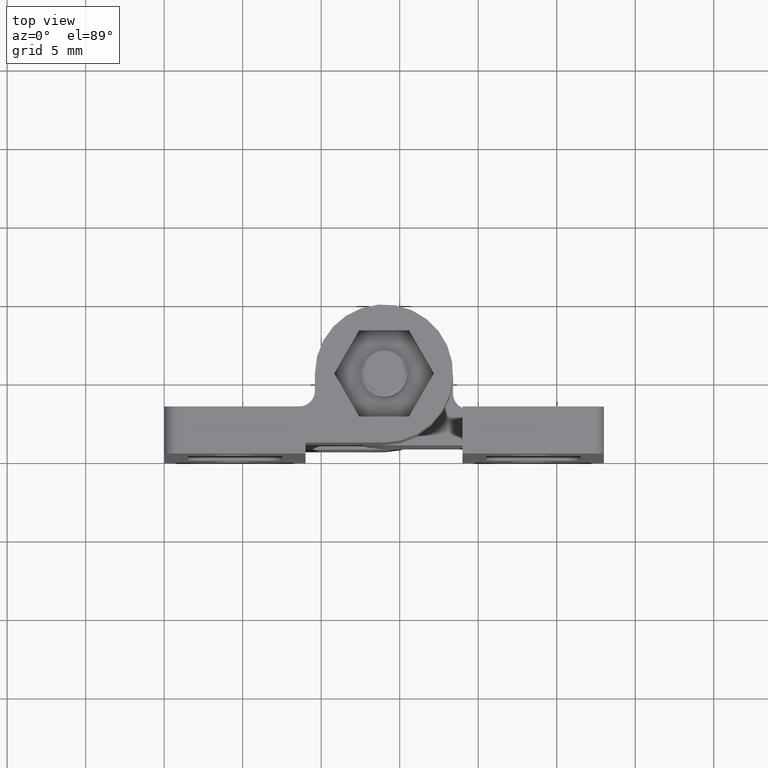
[diagram: clean part render]
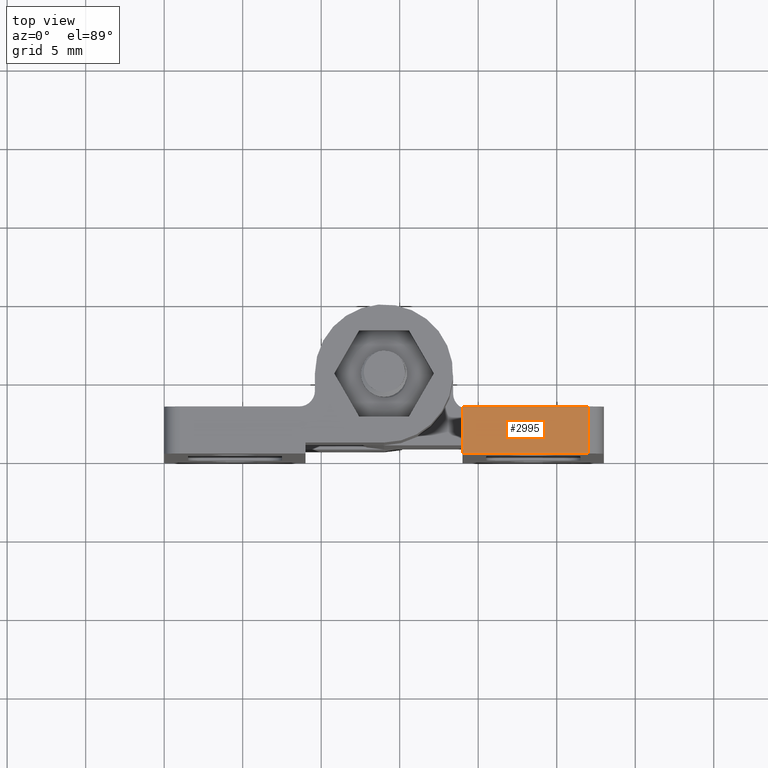
[diagram: same view with one face highlighted and labeled with its STEP entity id]
A machine part, top view. The second image highlights one B-rep face of the part: STEP entity #2995.
In plain terms, the highlighted planar face has unit normal (0, 0, 1).
Its self-contained STEP definition (entity closure, byte-faithful):
#393=PLANE('',#3155);
#491=FACE_OUTER_BOUND('',#627,.T.);
#627=EDGE_LOOP('',(#2744,#2745,#2746,#2747));
#782=LINE('',#33434,#938);
#784=LINE('',#33440,#940);
#785=LINE('',#33442,#941);
#786=LINE('',#33443,#942);
#938=VECTOR('',#3577,3.);
#940=VECTOR('',#3583,8.);
#941=VECTOR('',#3584,3.);
#942=VECTOR('',#3585,8.);
#1403=VERTEX_POINT('',#33431);
#1404=VERTEX_POINT('',#33433);
#1406=VERTEX_POINT('',#33439);
#1407=VERTEX_POINT('',#33441);
#1859=EDGE_CURVE('',#1403,#1404,#782,.T.);
#1862=EDGE_CURVE('',#1403,#1406,#784,.T.);
#1863=EDGE_CURVE('',#1406,#1407,#785,.T.);
#1864=EDGE_CURVE('',#1407,#1404,#786,.T.);
#2744=ORIENTED_EDGE('',*,*,#1859,.F.);
#2745=ORIENTED_EDGE('',*,*,#1862,.T.);
#2746=ORIENTED_EDGE('',*,*,#1863,.T.);
#2747=ORIENTED_EDGE('',*,*,#1864,.T.);
#2995=ADVANCED_FACE('',(#491),#393,.T.);
#3155=AXIS2_PLACEMENT_3D('',#33438,#3581,#3582);
#3577=DIRECTION('',(-6.12323399573677E-17,0.,-1.));
#3581=DIRECTION('center_axis',(0.,1.,0.));
#3582=DIRECTION('ref_axis',(1.,0.,0.));
#3583=DIRECTION('',(1.,0.,0.));
#3584=DIRECTION('',(0.,0.,-1.));
#3585=DIRECTION('',(-1.,0.,1.71193772834421E-33));
#33431=CARTESIAN_POINT('',(31.9262510638286,18.,3.));
#33433=CARTESIAN_POINT('',(31.9262510638286,18.,-1.71193772834421E-33));
#33434=CARTESIAN_POINT('',(31.9262510638286,18.,2.375));
#33438=CARTESIAN_POINT('Origin',(40.1262510638286,18.,4.75));
#33439=CARTESIAN_POINT('',(39.9262510638286,18.,3.));
#33440=CARTESIAN_POINT('',(40.0262510638287,18.,3.));
#33441=CARTESIAN_POINT('',(39.9262510638286,18.,0.));
#33442=CARTESIAN_POINT('',(39.9262510638287,18.,2.375));
#33443=CARTESIAN_POINT('',(30.9262510638286,18.,0.));